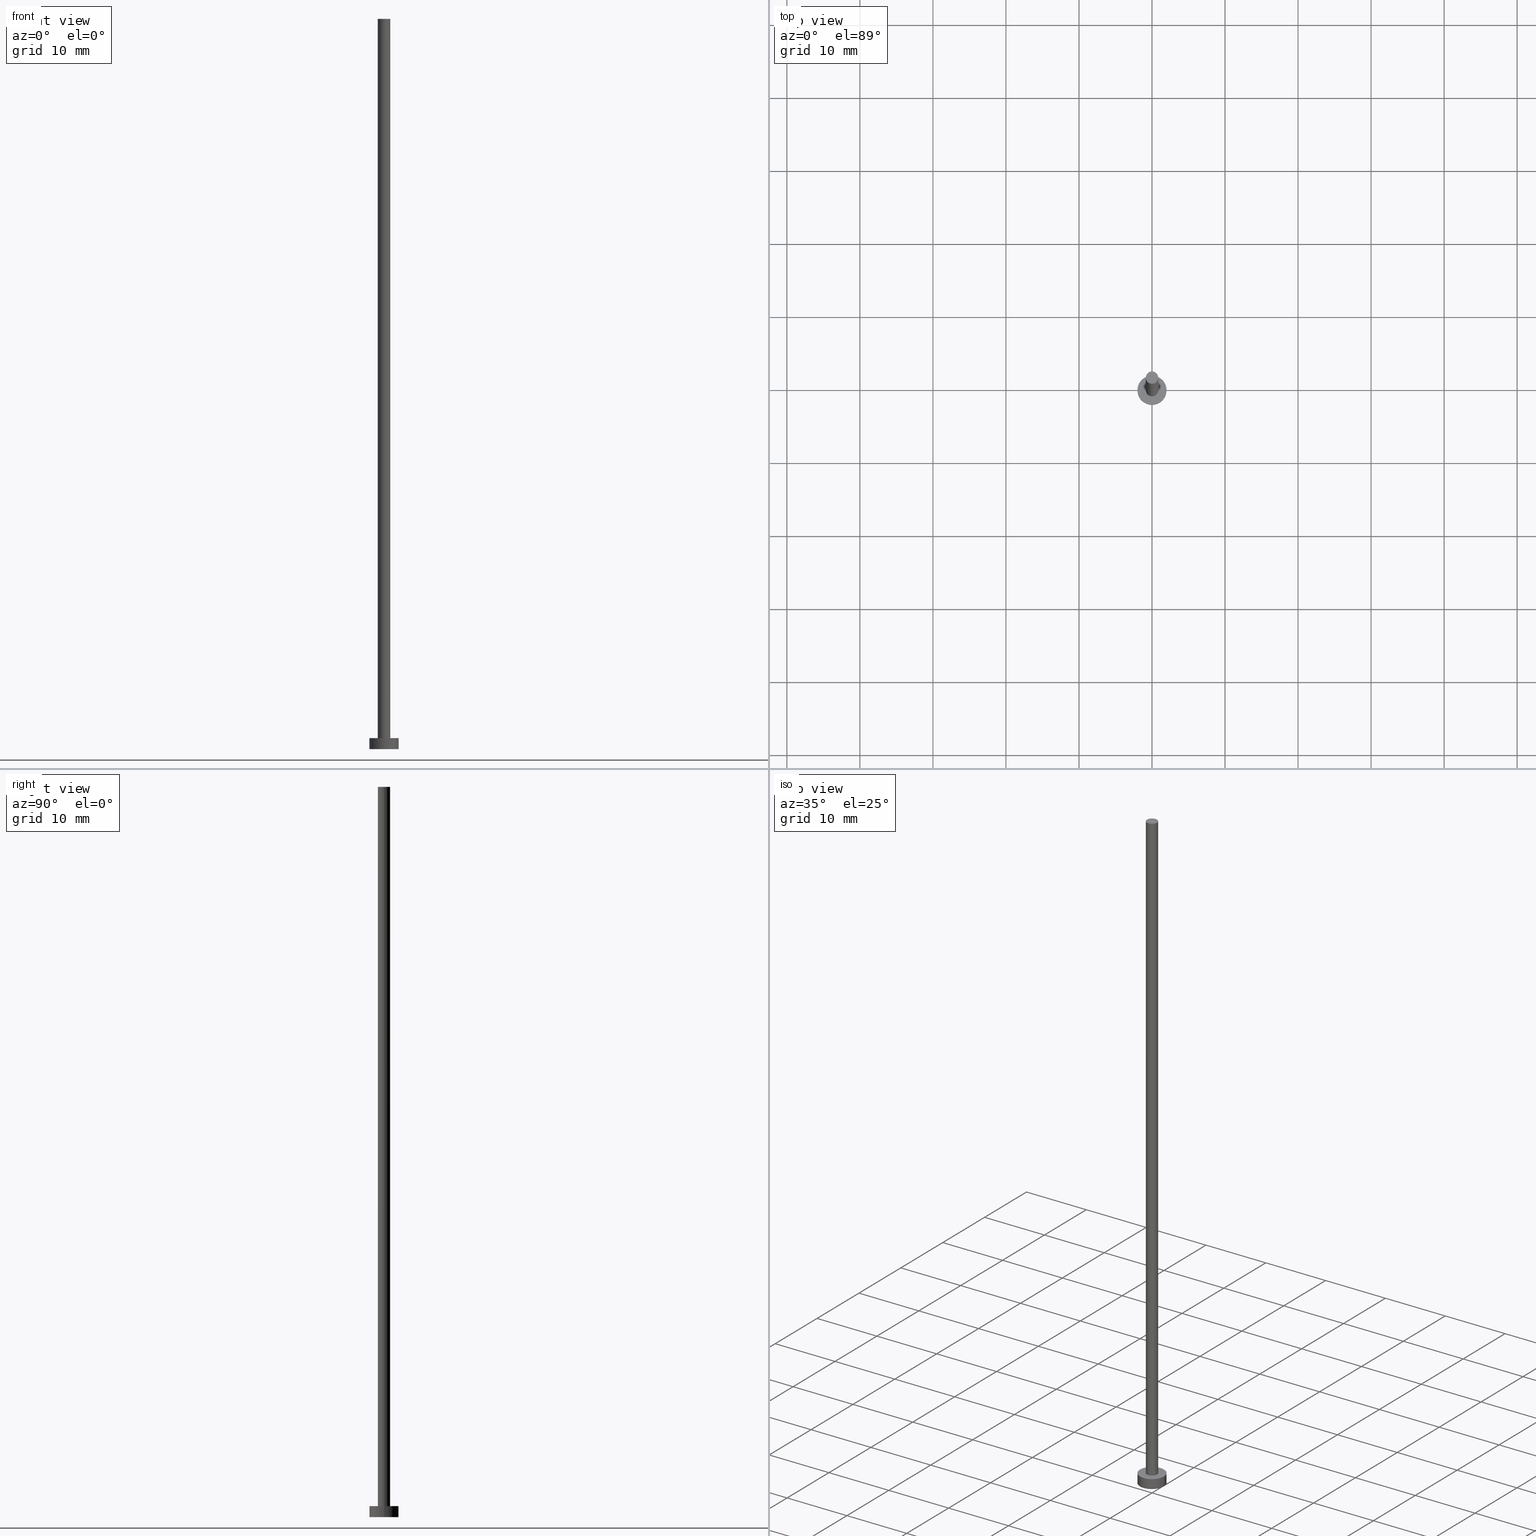
[diagram: canonical four-view strip — front | top / right | iso, engineering-drawing reading convention]
A machine part, canonical four-view strip (front | top / right | iso — engineering-drawing reading convention). The complete STEP part file that produces these views, byte-faithful:
ISO-10303-21;
HEADER;
FILE_DESCRIPTION (( 'STEP AP203' ),
    '1' );
FILE_NAME ('6d54.STEP',
    '2023-02-13T17:17:14',
    ( '' ),
    ( '' ),
    'SwSTEP 2.0',
    'SolidWorks 2019',
    '' );
FILE_SCHEMA (( 'CONFIG_CONTROL_DESIGN' ));
ENDSEC;

DATA;
#1 = APPROVAL_ROLE ( '' ) ;
#2 = CIRCLE ( 'NONE', #151, 2.000000000000000000 ) ;
#3 = PERSON_AND_ORGANIZATION ( #6, #255 ) ;
#4 =( NAMED_UNIT ( * ) SI_UNIT ( $, .STERADIAN. ) SOLID_ANGLE_UNIT ( ) );
#5 = ORIENTED_EDGE ( 'NONE', *, *, #67, .T. ) ;
#6 = PERSON ( 'NEUR�EN�', 'NEUR�EN�', 'NEUR�EN�', ('NEUR�EN�'), ('NEUR�EN�'), ('NEUR�EN�') ) ;
#7 = PERSON_AND_ORGANIZATION ( #6, #255 ) ;
#8 = CARTESIAN_POINT ( 'NONE',  ( 0.8499999999999999778, 1.040949779275250140E-16, 100.0000000000000000 ) ) ;
#9 = CC_DESIGN_SECURITY_CLASSIFICATION ( #161, ( #52 ) ) ;
#10 = APPROVAL_DATE_TIME ( #223, #85 ) ;
#11 = EDGE_LOOP ( 'NONE', ( #133, #186, #75, #222 ) ) ;
#12 = APPROVAL_STATUS ( 'not_yet_approved' ) ;
#13 = EDGE_LOOP ( 'NONE', ( #127, #93, #165, #30 ) ) ;
#14 = APPROVAL_DATE_TIME ( #71, #143 ) ;
#15 = ORIENTED_EDGE ( 'NONE', *, *, #224, .F. ) ;
#16 = PRODUCT_DEFINITION ( 'NEZN�M�', '', #52, #212 ) ;
#17 = DIRECTION ( 'NONE',  ( 0.000000000000000000, 0.000000000000000000, 1.000000000000000000 ) ) ;
#18 = DIRECTION ( 'NONE',  ( -0.000000000000000000, -0.000000000000000000, -1.000000000000000000 ) ) ;
#19 = CARTESIAN_POINT ( 'NONE',  ( -2.000000000000000000, 0.000000000000000000, 1.500000000000000000 ) ) ;
#20 = DIRECTION ( 'NONE',  ( 1.000000000000000000, 0.000000000000000000, 0.000000000000000000 ) ) ;
#21 = EDGE_CURVE ( 'NONE', #131, #50, #106, .T. ) ;
#22 = PERSON_AND_ORGANIZATION_ROLE ( 'design_owner' ) ;
#23 = DIRECTION ( 'NONE',  ( -0.000000000000000000, -0.000000000000000000, -1.000000000000000000 ) ) ;
#24 = ADVANCED_FACE ( 'NONE', ( #166 ), #245, .T. ) ;
#25 = LINE ( 'NONE', #42, #108 ) ;
#26 = PERSON_AND_ORGANIZATION ( #6, #255 ) ;
#27 = ORIENTED_EDGE ( 'NONE', *, *, #213, .T. ) ;
#28 = EDGE_LOOP ( 'NONE', ( #150, #225 ) ) ;
#29 = SHAPE_DEFINITION_REPRESENTATION ( #176, #111 ) ;
#30 = ORIENTED_EDGE ( 'NONE', *, *, #89, .T. ) ;
#31 = AXIS2_PLACEMENT_3D ( 'NONE', #156, #157, #20 ) ;
#32 = ORIENTED_EDGE ( 'NONE', *, *, #67, .F. ) ;
#33 = EDGE_LOOP ( 'NONE', ( #153, #205, #27, #32 ) ) ;
#34 = DIRECTION ( 'NONE',  ( 0.000000000000000000, 0.000000000000000000, 1.000000000000000000 ) ) ;
#35 = CLOSED_SHELL ( 'NONE', ( #164, #24, #154, #210, #230, #44, #61 ) ) ;
#36 = DIRECTION ( 'NONE',  ( -0.000000000000000000, -0.000000000000000000, -1.000000000000000000 ) ) ;
#37 = CC_DESIGN_PERSON_AND_ORGANIZATION_ASSIGNMENT ( #147, #128, ( #52 ) ) ;
#38 = DIRECTION ( 'NONE',  ( 1.000000000000000000, 0.000000000000000000, 0.000000000000000000 ) ) ;
#39 = CARTESIAN_POINT ( 'NONE',  ( 0.8499999999999999778, 1.040949779275250140E-16, 1.500000000000000000 ) ) ;
#40 =( GEOMETRIC_REPRESENTATION_CONTEXT ( 3 ) GLOBAL_UNCERTAINTY_ASSIGNED_CONTEXT ( ( #100 ) ) GLOBAL_UNIT_ASSIGNED_CONTEXT ( ( #244, #182, #4 ) ) REPRESENTATION_CONTEXT ( 'NONE', 'WORKASPACE' ) );
#41 = PLANE ( 'NONE',  #232 ) ;
#42 = CARTESIAN_POINT ( 'NONE',  ( 2.000000000000000000, 2.449293598294706414E-16, 1.500000000000000000 ) ) ;
#43 = CARTESIAN_POINT ( 'NONE',  ( 0.000000000000000000, 0.000000000000000000, 100.0000000000000000 ) ) ;
#44 = ADVANCED_FACE ( 'NONE', ( #174 ), #190, .T. ) ;
#45 = FACE_OUTER_BOUND ( 'NONE', #227, .T. ) ;
#46 = CALENDAR_DATE ( 2023, 13, 2 ) ;
#47 = DATE_TIME_ROLE ( 'classification_date' ) ;
#48 = AXIS2_PLACEMENT_3D ( 'NONE', #214, #56, #79 ) ;
#49 = VERTEX_POINT ( 'NONE', #175 ) ;
#50 = VERTEX_POINT ( 'NONE', #39 ) ;
#51 = ORIENTED_EDGE ( 'NONE', *, *, #228, .F. ) ;
#52 = PRODUCT_DEFINITION_FORMATION_WITH_SPECIFIED_SOURCE ( 'LIBOVOLN�', '', #235, .NOT_KNOWN. ) ;
#53 = APPROVAL_PERSON_ORGANIZATION ( #217, #85, #1 ) ;
#54 = EDGE_LOOP ( 'NONE', ( #183, #69 ) ) ;
#55 = ORIENTED_EDGE ( 'NONE', *, *, #213, .F. ) ;
#56 = DIRECTION ( 'NONE',  ( -0.000000000000000000, -0.000000000000000000, -1.000000000000000000 ) ) ;
#57 = CC_DESIGN_APPROVAL ( #70, ( #16 ) ) ;
#58 = CARTESIAN_POINT ( 'NONE',  ( 0.000000000000000000, 0.000000000000000000, 1.500000000000000000 ) ) ;
#59 = CIRCLE ( 'NONE', #80, 0.8499999999999999778 ) ;
#60 = DIRECTION ( 'NONE',  ( 1.000000000000000000, 0.000000000000000000, 0.000000000000000000 ) ) ;
#61 = ADVANCED_FACE ( 'NONE', ( #216 ), #118, .T. ) ;
#62 = CARTESIAN_POINT ( 'NONE',  ( -2.000000000000000000, 0.000000000000000000, 0.000000000000000000 ) ) ;
#63 = LINE ( 'NONE', #137, #239 ) ;
#64 = CIRCLE ( 'NONE', #191, 2.000000000000000000 ) ;
#65 = VECTOR ( 'NONE', #91, 1000.000000000000000 ) ;
#66 = DIRECTION ( 'NONE',  ( 0.000000000000000000, 0.000000000000000000, 1.000000000000000000 ) ) ;
#67 = EDGE_CURVE ( 'NONE', #132, #168, #63, .T. ) ;
#68 = APPROVAL_DATE_TIME ( #103, #70 ) ;
#69 = ORIENTED_EDGE ( 'NONE', *, *, #141, .F. ) ;
#70 = APPROVAL ( #162, 'NEUR�EN�' ) ;
#71 = DATE_AND_TIME ( #74, #88 ) ;
#72 = CARTESIAN_POINT ( 'NONE',  ( 0.000000000000000000, 0.000000000000000000, 1.500000000000000000 ) ) ;
#73 = COORDINATED_UNIVERSAL_TIME_OFFSET ( 1, 0, .AHEAD. ) ;
#74 = CALENDAR_DATE ( 2023, 13, 2 ) ;
#75 = ORIENTED_EDGE ( 'NONE', *, *, #141, .T. ) ;
#76 = DIRECTION ( 'NONE',  ( 1.000000000000000000, 0.000000000000000000, 0.000000000000000000 ) ) ;
#77 = DIRECTION ( 'NONE',  ( 0.000000000000000000, 0.000000000000000000, 1.000000000000000000 ) ) ;
#78 = AXIS2_PLACEMENT_3D ( 'NONE', #215, #77, #116 ) ;
#79 = DIRECTION ( 'NONE',  ( -1.000000000000000000, 0.000000000000000000, 0.000000000000000000 ) ) ;
#80 = AXIS2_PLACEMENT_3D ( 'NONE', #115, #140, #38 ) ;
#81 = DIRECTION ( 'NONE',  ( 1.000000000000000000, 0.000000000000000000, 0.000000000000000000 ) ) ;
#82 = CARTESIAN_POINT ( 'NONE',  ( 2.000000000000000000, 2.449293598294706414E-16, 0.000000000000000000 ) ) ;
#83 = CC_DESIGN_PERSON_AND_ORGANIZATION_ASSIGNMENT ( #7, #221, ( #52 ) ) ;
#84 = DATE_AND_TIME ( #104, #200 ) ;
#85 = APPROVAL ( #180, 'NEUR�EN�' ) ;
#86 = CARTESIAN_POINT ( 'NONE',  ( -0.8499999999999999778, 0.000000000000000000, 1.500000000000000000 ) ) ;
#87 = PERSON_AND_ORGANIZATION ( #6, #255 ) ;
#88 = LOCAL_TIME ( 18, 17, 14.00000000000000000, #73 ) ;
#89 = EDGE_CURVE ( 'NONE', #248, #50, #59, .T. ) ;
#90 = DIRECTION ( 'NONE',  ( 0.000000000000000000, 0.000000000000000000, 1.000000000000000000 ) ) ;
#91 = DIRECTION ( 'NONE',  ( -0.000000000000000000, -0.000000000000000000, -1.000000000000000000 ) ) ;
#92 = CIRCLE ( 'NONE', #101, 0.8499999999999999778 ) ;
#93 = ORIENTED_EDGE ( 'NONE', *, *, #160, .F. ) ;
#94 = COORDINATED_UNIVERSAL_TIME_OFFSET ( 1, 0, .AHEAD. ) ;
#95 = VERTEX_POINT ( 'NONE', #82 ) ;
#96 = LOCAL_TIME ( 18, 17, 14.00000000000000000, #94 ) ;
#97 = FACE_OUTER_BOUND ( 'NONE', #152, .T. ) ;
#98 = DIRECTION ( 'NONE',  ( 0.000000000000000000, 0.000000000000000000, 1.000000000000000000 ) ) ;
#99 = CARTESIAN_POINT ( 'NONE',  ( 0.000000000000000000, 0.000000000000000000, 1.500000000000000000 ) ) ;
#100 = UNCERTAINTY_MEASURE_WITH_UNIT (LENGTH_MEASURE( 1.000000000000000082E-05 ), #244, 'distance_accuracy_value', 'NONE');
#101 = AXIS2_PLACEMENT_3D ( 'NONE', #43, #90, #199 ) ;
#102 = DIRECTION ( 'NONE',  ( 0.000000000000000000, 0.000000000000000000, 1.000000000000000000 ) ) ;
#103 = DATE_AND_TIME ( #46, #136 ) ;
#104 = CALENDAR_DATE ( 2023, 13, 2 ) ;
#105 = DIRECTION ( 'NONE',  ( 0.000000000000000000, 0.000000000000000000, 1.000000000000000000 ) ) ;
#106 = LINE ( 'NONE', #8, #65 ) ;
#107 = ORIENTED_EDGE ( 'NONE', *, *, #119, .F. ) ;
#108 = VECTOR ( 'NONE', #23, 1000.000000000000000 ) ;
#109 = APPROVAL_ROLE ( '' ) ;
#110 = DIRECTION ( 'NONE',  ( -1.000000000000000000, 0.000000000000000000, 0.000000000000000000 ) ) ;
#111 = ADVANCED_BREP_SHAPE_REPRESENTATION ( '6d54', ( #206, #144 ), #40 ) ;
#112 = CC_DESIGN_APPROVAL ( #143, ( #161 ) ) ;
#113 = FACE_OUTER_BOUND ( 'NONE', #28, .T. ) ;
#114 = AXIS2_PLACEMENT_3D ( 'NONE', #194, #231, #178 ) ;
#115 = CARTESIAN_POINT ( 'NONE',  ( 0.000000000000000000, 0.000000000000000000, 1.500000000000000000 ) ) ;
#116 = DIRECTION ( 'NONE',  ( 1.000000000000000000, 0.000000000000000000, -0.000000000000000000 ) ) ;
#117 = PRODUCT_RELATED_PRODUCT_CATEGORY ( 'detail', '', ( #235 ) ) ;
#118 = PLANE ( 'NONE',  #114 ) ;
#119 = EDGE_CURVE ( 'NONE', #132, #49, #2, .T. ) ;
#120 = DIRECTION ( 'NONE',  ( 1.000000000000000000, 0.000000000000000000, -0.000000000000000000 ) ) ;
#121 = LOCAL_TIME ( 18, 17, 14.00000000000000000, #170 ) ;
#122 = DIRECTION ( 'NONE',  ( 1.000000000000000000, 0.000000000000000000, 0.000000000000000000 ) ) ;
#123 = AXIS2_PLACEMENT_3D ( 'NONE', #159, #253, #249 ) ;
#124 = PERSON_AND_ORGANIZATION ( #6, #255 ) ;
#125 = CALENDAR_DATE ( 2023, 13, 2 ) ;
#126 = CIRCLE ( 'NONE', #218, 2.000000000000000000 ) ;
#127 = ORIENTED_EDGE ( 'NONE', *, *, #21, .F. ) ;
#128 = PERSON_AND_ORGANIZATION_ROLE ( 'design_supplier' ) ;
#129 = ORIENTED_EDGE ( 'NONE', *, *, #160, .T. ) ;
#130 = PERSON_AND_ORGANIZATION ( #6, #255 ) ;
#131 = VERTEX_POINT ( 'NONE', #193 ) ;
#132 = VERTEX_POINT ( 'NONE', #19 ) ;
#133 = ORIENTED_EDGE ( 'NONE', *, *, #220, .F. ) ;
#134 = CC_DESIGN_DATE_AND_TIME_ASSIGNMENT ( #208, #47, ( #161 ) ) ;
#135 = CARTESIAN_POINT ( 'NONE',  ( -0.8499999999999999778, 0.000000000000000000, 100.0000000000000000 ) ) ;
#136 = LOCAL_TIME ( 18, 17, 14.00000000000000000, #243 ) ;
#137 = CARTESIAN_POINT ( 'NONE',  ( -2.000000000000000000, 0.000000000000000000, 1.500000000000000000 ) ) ;
#138 = FACE_BOUND ( 'NONE', #54, .T. ) ;
#139 = DIRECTION ( 'NONE',  ( 1.000000000000000000, 0.000000000000000000, 0.000000000000000000 ) ) ;
#140 = DIRECTION ( 'NONE',  ( 0.000000000000000000, 0.000000000000000000, 1.000000000000000000 ) ) ;
#141 = EDGE_CURVE ( 'NONE', #50, #248, #203, .T. ) ;
#142 = DIRECTION ( 'NONE',  ( 0.000000000000000000, 0.000000000000000000, 1.000000000000000000 ) ) ;
#143 = APPROVAL ( #12, 'NEUR�EN�' ) ;
#144 = AXIS2_PLACEMENT_3D ( 'NONE', #240, #66, #122 ) ;
#145 = APPLICATION_PROTOCOL_DEFINITION ( 'international standard', 'config_control_design', 1994, #172 ) ;
#146 = MECHANICAL_CONTEXT ( 'NONE', #242, 'mechanical' ) ;
#147 = PERSON_AND_ORGANIZATION ( #6, #255 ) ;
#148 = ORIENTED_EDGE ( 'NONE', *, *, #220, .T. ) ;
#149 = CC_DESIGN_APPROVAL ( #85, ( #52 ) ) ;
#150 = ORIENTED_EDGE ( 'NONE', *, *, #119, .T. ) ;
#151 = AXIS2_PLACEMENT_3D ( 'NONE', #58, #17, #76 ) ;
#152 = EDGE_LOOP ( 'NONE', ( #15, #107, #5, #187 ) ) ;
#153 = ORIENTED_EDGE ( 'NONE', *, *, #201, .F. ) ;
#154 = ADVANCED_FACE ( 'NONE', ( #97 ), #173, .T. ) ;
#155 = AXIS2_PLACEMENT_3D ( 'NONE', #99, #98, #81 ) ;
#156 = CARTESIAN_POINT ( 'NONE',  ( 0.000000000000000000, 0.000000000000000000, 100.0000000000000000 ) ) ;
#157 = DIRECTION ( 'NONE',  ( 0.000000000000000000, 0.000000000000000000, 1.000000000000000000 ) ) ;
#158 = CYLINDRICAL_SURFACE ( 'NONE', #48, 0.8499999999999999778 ) ;
#159 = CARTESIAN_POINT ( 'NONE',  ( 0.000000000000000000, 0.000000000000000000, 1.500000000000000000 ) ) ;
#160 = EDGE_CURVE ( 'NONE', #209, #131, #234, .T. ) ;
#161 = SECURITY_CLASSIFICATION ( '', '', #184 ) ;
#162 = APPROVAL_STATUS ( 'not_yet_approved' ) ;
#163 = AXIS2_PLACEMENT_3D ( 'NONE', #211, #34, #60 ) ;
#164 = ADVANCED_FACE ( 'NONE', ( #251 ), #158, .T. ) ;
#165 = ORIENTED_EDGE ( 'NONE', *, *, #192, .T. ) ;
#166 = FACE_OUTER_BOUND ( 'NONE', #33, .T. ) ;
#167 = APPROVAL_PERSON_ORGANIZATION ( #87, #70, #219 ) ;
#168 = VERTEX_POINT ( 'NONE', #62 ) ;
#169 = AXIS2_PLACEMENT_3D ( 'NONE', #72, #18, #110 ) ;
#170 = COORDINATED_UNIVERSAL_TIME_OFFSET ( 1, 0, .AHEAD. ) ;
#171 = PERSON_AND_ORGANIZATION_ROLE ( 'classification_officer' ) ;
#172 = APPLICATION_CONTEXT ( 'configuration controlled 3d designs of mechanical parts and assemblies' ) ;
#173 = CYLINDRICAL_SURFACE ( 'NONE', #123, 2.000000000000000000 ) ;
#174 = FACE_OUTER_BOUND ( 'NONE', #13, .T. ) ;
#175 = CARTESIAN_POINT ( 'NONE',  ( 2.000000000000000000, 2.449293598294706414E-16, 1.500000000000000000 ) ) ;
#176 = PRODUCT_DEFINITION_SHAPE ( 'NONE', 'NONE',  #16 ) ;
#177 = CARTESIAN_POINT ( 'NONE',  ( 0.000000000000000000, 0.000000000000000000, 100.0000000000000000 ) ) ;
#178 = DIRECTION ( 'NONE',  ( 1.000000000000000000, 0.000000000000000000, -0.000000000000000000 ) ) ;
#179 = CARTESIAN_POINT ( 'NONE',  ( 0.000000000000000000, 0.000000000000000000, 0.000000000000000000 ) ) ;
#180 = APPROVAL_STATUS ( 'not_yet_approved' ) ;
#181 = CARTESIAN_POINT ( 'NONE',  ( 0.000000000000000000, 0.000000000000000000, 0.000000000000000000 ) ) ;
#182 =( NAMED_UNIT ( * ) PLANE_ANGLE_UNIT ( ) SI_UNIT ( $, .RADIAN. ) );
#183 = ORIENTED_EDGE ( 'NONE', *, *, #89, .F. ) ;
#184 = SECURITY_CLASSIFICATION_LEVEL ( 'unclassified' ) ;
#185 = CC_DESIGN_PERSON_AND_ORGANIZATION_ASSIGNMENT ( #3, #22, ( #235 ) ) ;
#186 = ORIENTED_EDGE ( 'NONE', *, *, #21, .T. ) ;
#187 = ORIENTED_EDGE ( 'NONE', *, *, #228, .T. ) ;
#188 = AXIS2_PLACEMENT_3D ( 'NONE', #177, #36, #237 ) ;
#189 = CC_DESIGN_DATE_AND_TIME_ASSIGNMENT ( #84, #238, ( #16 ) ) ;
#190 = CYLINDRICAL_SURFACE ( 'NONE', #188, 0.8499999999999999778 ) ;
#191 = AXIS2_PLACEMENT_3D ( 'NONE', #179, #105, #241 ) ;
#192 = EDGE_CURVE ( 'NONE', #209, #248, #233, .T. ) ;
#193 = CARTESIAN_POINT ( 'NONE',  ( 0.8499999999999999778, 1.040949779275250140E-16, 100.0000000000000000 ) ) ;
#194 = CARTESIAN_POINT ( 'NONE',  ( 0.000000000000000000, 0.000000000000000000, 100.0000000000000000 ) ) ;
#195 = CARTESIAN_POINT ( 'NONE',  ( 0.000000000000000000, 0.000000000000000000, 0.000000000000000000 ) ) ;
#196 = APPROVAL_PERSON_ORGANIZATION ( #130, #143, #109 ) ;
#197 = DIRECTION ( 'NONE',  ( -0.000000000000000000, -0.000000000000000000, -1.000000000000000000 ) ) ;
#198 = APPLICATION_PROTOCOL_DEFINITION ( 'international standard', 'config_control_design', 1994, #242 ) ;
#199 = DIRECTION ( 'NONE',  ( 1.000000000000000000, 0.000000000000000000, 0.000000000000000000 ) ) ;
#200 = LOCAL_TIME ( 18, 17, 14.00000000000000000, #254 ) ;
#201 = EDGE_CURVE ( 'NONE', #49, #132, #207, .T. ) ;
#202 = PERSON_AND_ORGANIZATION_ROLE ( 'creator' ) ;
#203 = CIRCLE ( 'NONE', #155, 0.8499999999999999778 ) ;
#204 = CALENDAR_DATE ( 2023, 13, 2 ) ;
#205 = ORIENTED_EDGE ( 'NONE', *, *, #224, .T. ) ;
#206 = MANIFOLD_SOLID_BREP ( 'P�idat vysunut�m3', #35 ) ;
#207 = CIRCLE ( 'NONE', #163, 2.000000000000000000 ) ;
#208 = DATE_AND_TIME ( #204, #96 ) ;
#209 = VERTEX_POINT ( 'NONE', #250 ) ;
#210 = ADVANCED_FACE ( 'NONE', ( #138, #113 ), #236, .T. ) ;
#211 = CARTESIAN_POINT ( 'NONE',  ( 0.000000000000000000, 0.000000000000000000, 1.500000000000000000 ) ) ;
#212 = DESIGN_CONTEXT ( 'detailed design', #172, 'design' ) ;
#213 = EDGE_CURVE ( 'NONE', #95, #168, #126, .T. ) ;
#214 = CARTESIAN_POINT ( 'NONE',  ( 0.000000000000000000, 0.000000000000000000, 100.0000000000000000 ) ) ;
#215 = CARTESIAN_POINT ( 'NONE',  ( 0.000000000000000000, 0.000000000000000000, 1.500000000000000000 ) ) ;
#216 = FACE_OUTER_BOUND ( 'NONE', #247, .T. ) ;
#217 = PERSON_AND_ORGANIZATION ( #6, #255 ) ;
#218 = AXIS2_PLACEMENT_3D ( 'NONE', #195, #102, #139 ) ;
#219 = APPROVAL_ROLE ( '' ) ;
#220 = EDGE_CURVE ( 'NONE', #131, #209, #92, .T. ) ;
#221 = PERSON_AND_ORGANIZATION_ROLE ( 'creator' ) ;
#222 = ORIENTED_EDGE ( 'NONE', *, *, #192, .F. ) ;
#223 = DATE_AND_TIME ( #125, #121 ) ;
#224 = EDGE_CURVE ( 'NONE', #49, #95, #25, .T. ) ;
#225 = ORIENTED_EDGE ( 'NONE', *, *, #201, .T. ) ;
#226 = VECTOR ( 'NONE', #229, 1000.000000000000000 ) ;
#227 = EDGE_LOOP ( 'NONE', ( #51, #55 ) ) ;
#228 = EDGE_CURVE ( 'NONE', #168, #95, #64, .T. ) ;
#229 = DIRECTION ( 'NONE',  ( -0.000000000000000000, -0.000000000000000000, -1.000000000000000000 ) ) ;
#230 = ADVANCED_FACE ( 'NONE', ( #45 ), #41, .F. ) ;
#231 = DIRECTION ( 'NONE',  ( 0.000000000000000000, 0.000000000000000000, 1.000000000000000000 ) ) ;
#232 = AXIS2_PLACEMENT_3D ( 'NONE', #181, #142, #120 ) ;
#233 = LINE ( 'NONE', #135, #226 ) ;
#234 = CIRCLE ( 'NONE', #31, 0.8499999999999999778 ) ;
#235 = PRODUCT ( '6d54', '6d54', '', ( #146 ) ) ;
#236 = PLANE ( 'NONE',  #78 ) ;
#237 = DIRECTION ( 'NONE',  ( -1.000000000000000000, 0.000000000000000000, 0.000000000000000000 ) ) ;
#238 = DATE_TIME_ROLE ( 'creation_date' ) ;
#239 = VECTOR ( 'NONE', #197, 1000.000000000000000 ) ;
#240 = CARTESIAN_POINT ( 'NONE',  ( 0.000000000000000000, 0.000000000000000000, 0.000000000000000000 ) ) ;
#241 = DIRECTION ( 'NONE',  ( 1.000000000000000000, 0.000000000000000000, 0.000000000000000000 ) ) ;
#242 = APPLICATION_CONTEXT ( 'configuration controlled 3d designs of mechanical parts and assemblies' ) ;
#243 = COORDINATED_UNIVERSAL_TIME_OFFSET ( 1, 0, .AHEAD. ) ;
#244 =( LENGTH_UNIT ( ) NAMED_UNIT ( * ) SI_UNIT ( .MILLI., .METRE. ) );
#245 = CYLINDRICAL_SURFACE ( 'NONE', #169, 2.000000000000000000 ) ;
#246 = CC_DESIGN_PERSON_AND_ORGANIZATION_ASSIGNMENT ( #26, #171, ( #161 ) ) ;
#247 = EDGE_LOOP ( 'NONE', ( #129, #148 ) ) ;
#248 = VERTEX_POINT ( 'NONE', #86 ) ;
#249 = DIRECTION ( 'NONE',  ( -1.000000000000000000, 0.000000000000000000, 0.000000000000000000 ) ) ;
#250 = CARTESIAN_POINT ( 'NONE',  ( -0.8499999999999999778, 0.000000000000000000, 100.0000000000000000 ) ) ;
#251 = FACE_OUTER_BOUND ( 'NONE', #11, .T. ) ;
#252 = CC_DESIGN_PERSON_AND_ORGANIZATION_ASSIGNMENT ( #124, #202, ( #16 ) ) ;
#253 = DIRECTION ( 'NONE',  ( -0.000000000000000000, -0.000000000000000000, -1.000000000000000000 ) ) ;
#254 = COORDINATED_UNIVERSAL_TIME_OFFSET ( 1, 0, .AHEAD. ) ;
#255 = ORGANIZATION ( 'NEUR�EN�', 'NEUR�EN�', '' ) ;
ENDSEC;
END-ISO-10303-21;
